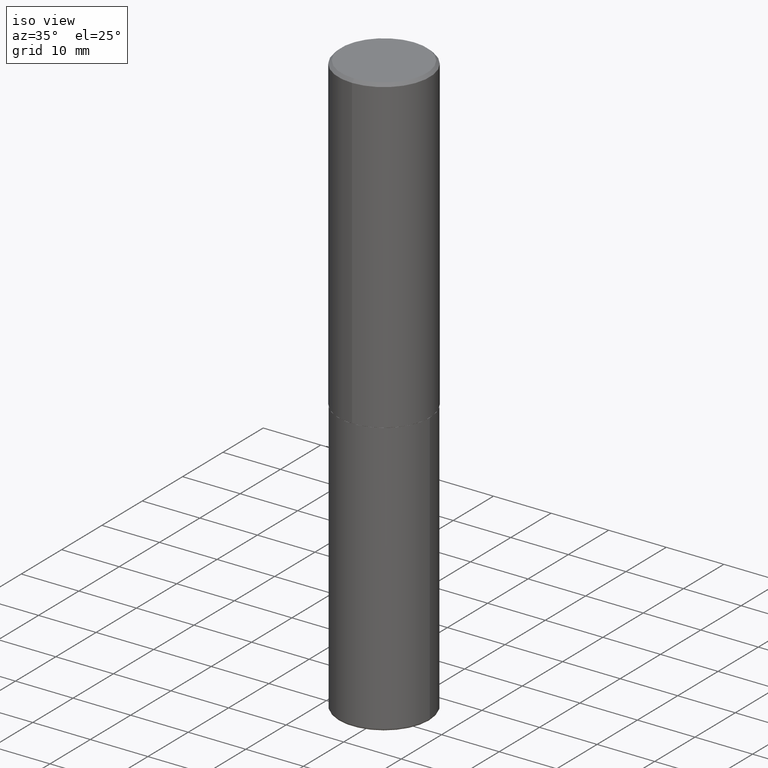
[diagram: clean part render]
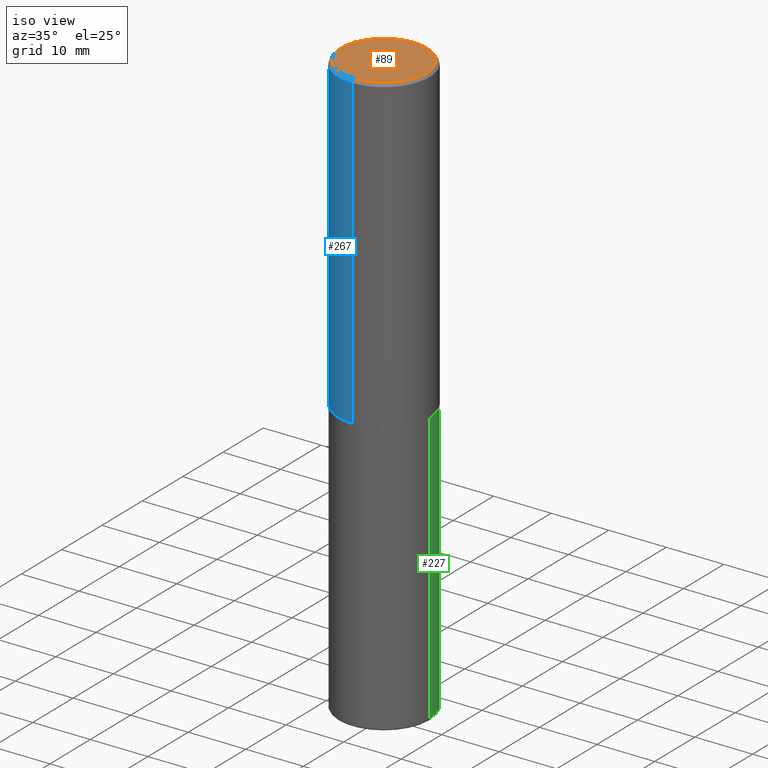
[diagram: same view with three faces highlighted in distinct colors, each labeled with its STEP entity id]
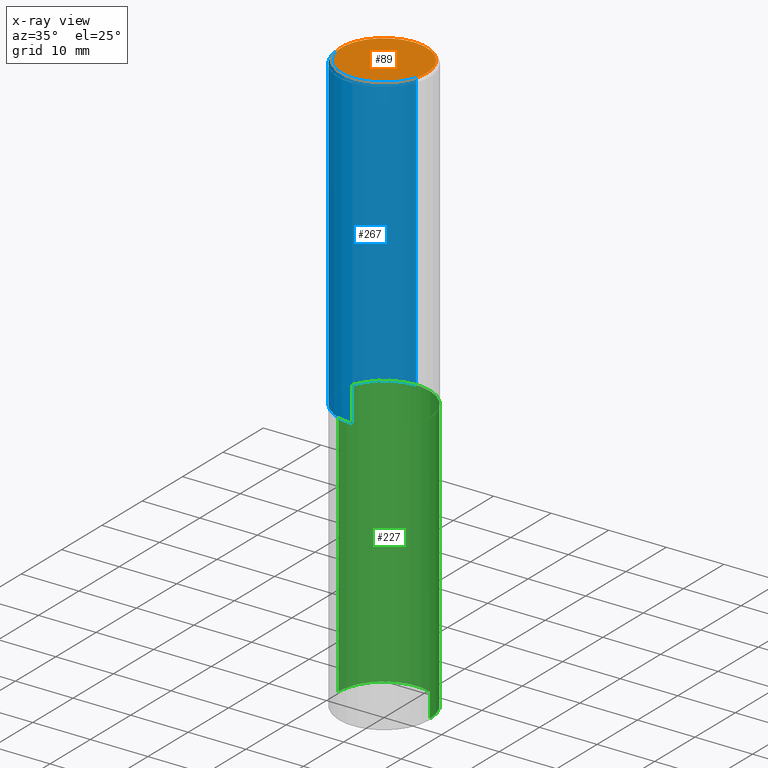
[diagram: x-ray of the same camera — body ghosted, the three highlighted faces saturated]
A machine part, iso view with three faces highlighted in distinct colors.
The next image is the same camera in x-ray (body ghosted, the three faces saturated) — at least one of them is partly hidden behind the body in this view.
Their STEP definitions:

[orange] entity #89 — the highlighted planar face has unit normal (0, -0, -1).
#7 = VERTEX_POINT ( 'NONE', #191 ) ;
#21 = DIRECTION ( 'NONE',  ( -2.444852431726452894E-29, 3.492364022149836358E-15, 1.000000000000000000 ) ) ;
#54 = CARTESIAN_POINT ( 'NONE',  ( -2.075300644325887493E-15, -0.2924999999999999822, 1.030311686326234990E-15 ) ) ;
#73 = AXIS2_PLACEMENT_3D ( 'NONE', #407, #21, #147 ) ;
#89 = ADVANCED_FACE ( 'NONE', ( #187 ), #152, .F. ) ;
#119 = DIRECTION ( 'NONE',  ( -6.982962677686265133E-15, -1.000000000000000000, 3.492364022149836753E-15 ) ) ;
#138 = EDGE_LOOP ( 'NONE', ( #362, #194 ) ) ;
#147 = DIRECTION ( 'NONE',  ( -6.982962677686265133E-15, -1.000000000000000000, 3.492364022149836753E-15 ) ) ;
#152 = PLANE ( 'NONE',  #378 ) ;
#176 = CARTESIAN_POINT ( 'NONE',  ( -2.150299018297948745E-46, 3.071607443834507134E-32, 8.795209847407834549E-18 ) ) ;
#184 = CIRCLE ( 'NONE', #73, 0.2924999999999999822 ) ;
#187 = FACE_OUTER_BOUND ( 'NONE', #138, .T. ) ;
#191 = CARTESIAN_POINT ( 'NONE',  ( 2.112346210000095838E-15, 0.2924999999999999822, -1.012721266631419361E-15 ) ) ;
#194 = ORIENTED_EDGE ( 'NONE', *, *, #230, .T. ) ;
#204 = DIRECTION ( 'NONE',  ( 6.982962677686265922E-15, 1.000000000000000000, -3.492364022149836358E-15 ) ) ;
#230 = EDGE_CURVE ( 'NONE', #261, #7, #184, .T. ) ;
#249 = EDGE_CURVE ( 'NONE', #7, #261, #372, .T. ) ;
#260 = CARTESIAN_POINT ( 'NONE',  ( 2.042516583223232540E-15, 0.2924999999999999822, -1.017118871555123169E-15 ) ) ;
#261 = VERTEX_POINT ( 'NONE', #54 ) ;
#307 = DIRECTION ( 'NONE',  ( -2.444852431726452894E-29, 3.492364022149836358E-15, 1.000000000000000000 ) ) ;
#325 = DIRECTION ( 'NONE',  ( 2.444852431726452333E-29, -3.492364022149836358E-15, -1.000000000000000000 ) ) ;
#343 = AXIS2_PLACEMENT_3D ( 'NONE', #176, #307, #119 ) ;
#362 = ORIENTED_EDGE ( 'NONE', *, *, #249, .T. ) ;
#372 = CIRCLE ( 'NONE', #343, 0.2924999999999999822 ) ;
#378 = AXIS2_PLACEMENT_3D ( 'NONE', #260, #325, #204 ) ;
#407 = CARTESIAN_POINT ( 'NONE',  ( -2.150299018297948745E-46, 3.071607443834507134E-32, 8.795209847407834549E-18 ) ) ;

[blue] entity #267 — the highlighted cylindrical surface (partial cylindrical patch) has radius 7.9375 mm, axis along (-0, 0, 1).
#18 = LINE ( 'NONE', #182, #309 ) ;
#53 = AXIS2_PLACEMENT_3D ( 'NONE', #351, #154, #279 ) ;
#60 = DIRECTION ( 'NONE',  ( -2.444852431726452614E-29, 3.492364022149836358E-15, 1.000000000000000000 ) ) ;
#71 = VERTEX_POINT ( 'NONE', #215 ) ;
#79 = AXIS2_PLACEMENT_3D ( 'NONE', #373, #339, #88 ) ;
#81 = EDGE_CURVE ( 'NONE', #395, #123, #385, .T. ) ;
#88 = DIRECTION ( 'NONE',  ( -6.982962677686265922E-15, -1.000000000000000000, 3.496765431890253764E-15 ) ) ;
#100 = CARTESIAN_POINT ( 'NONE',  ( 2.220446049250313475E-15, 0.3125000000000001665, -1.091363756921824478E-15 ) ) ;
#120 = VECTOR ( 'NONE', #60, 39.37007874015748143 ) ;
#123 = VERTEX_POINT ( 'NONE', #295 ) ;
#134 = ORIENTED_EDGE ( 'NONE', *, *, #81, .F. ) ;
#135 = ORIENTED_EDGE ( 'NONE', *, *, #416, .F. ) ;
#149 = DIRECTION ( 'NONE',  ( -6.982962677686265133E-15, -1.000000000000000000, 3.492364022149836358E-15 ) ) ;
#154 = DIRECTION ( 'NONE',  ( -2.444852431726452894E-29, 3.492364022149836358E-15, 1.000000000000000000 ) ) ;
#174 = DIRECTION ( 'NONE',  ( -2.444852431726452894E-29, 3.492364022149836358E-15, 1.000000000000000000 ) ) ;
#182 = CARTESIAN_POINT ( 'NONE',  ( -2.182175836776959136E-15, -0.3125000000000001665, 1.091363756921824478E-15 ) ) ;
#196 = EDGE_LOOP ( 'NONE', ( #134, #233, #326, #135 ) ) ;
#208 = CARTESIAN_POINT ( 'NONE',  ( 0.000000000000000000, 0.000000000000000000, 0.000000000000000000 ) ) ;
#215 = CARTESIAN_POINT ( 'NONE',  ( -2.182175836776908254E-15, -0.3125000000000077161, -2.123999999999998334 ) ) ;
#220 = CARTESIAN_POINT ( 'NONE',  ( 2.220446049250340297E-15, 0.3124999999999928391, -2.124000000000000554 ) ) ;
#221 = VERTEX_POINT ( 'NONE', #332 ) ;
#225 = CIRCLE ( 'NONE', #53, 0.3125000000000000000 ) ;
#233 = ORIENTED_EDGE ( 'NONE', *, *, #257, .T. ) ;
#244 = CYLINDRICAL_SURFACE ( 'NONE', #358, 0.3125000000000001665 ) ;
#257 = EDGE_CURVE ( 'NONE', #395, #71, #305, .T. ) ;
#267 = ADVANCED_FACE ( 'NONE', ( #271 ), #244, .T. ) ;
#271 = FACE_OUTER_BOUND ( 'NONE', #196, .T. ) ;
#273 = EDGE_CURVE ( 'NONE', #71, #221, #18, .T. ) ;
#279 = DIRECTION ( 'NONE',  ( -6.982962677686265133E-15, -1.000000000000000000, 3.496765431890256920E-15 ) ) ;
#295 = CARTESIAN_POINT ( 'NONE',  ( 2.182175836776958741E-15, 0.3124999999999999445, -0.02000000000000116268 ) ) ;
#305 = CIRCLE ( 'NONE', #79, 0.3125000000000002776 ) ;
#308 = DIRECTION ( 'NONE',  ( -2.444852431726452614E-29, 3.492364022149836358E-15, 1.000000000000000000 ) ) ;
#309 = VECTOR ( 'NONE', #308, 39.37007874015748143 ) ;
#326 = ORIENTED_EDGE ( 'NONE', *, *, #273, .T. ) ;
#332 = CARTESIAN_POINT ( 'NONE',  ( -2.143905624303602824E-15, -0.3125000000000000555, -0.01999999999999897693 ) ) ;
#339 = DIRECTION ( 'NONE',  ( -2.444852431726452894E-29, 3.492364022149836358E-15, 1.000000000000000000 ) ) ;
#351 = CARTESIAN_POINT ( 'NONE',  ( 4.889704863452922148E-31, -6.984728044299695791E-17, -0.02000000000000006981 ) ) ;
#358 = AXIS2_PLACEMENT_3D ( 'NONE', #208, #174, #149 ) ;
#373 = CARTESIAN_POINT ( 'NONE',  ( 5.192866564986985411E-29, -7.417781183046251262E-15, -2.123999999999999666 ) ) ;
#385 = LINE ( 'NONE', #100, #120 ) ;
#395 = VERTEX_POINT ( 'NONE', #220 ) ;
#416 = EDGE_CURVE ( 'NONE', #123, #221, #225, .T. ) ;

[green] entity #227 — the highlighted cylindrical surface (partial cylindrical patch) has radius 7.9375 mm, axis along (-0, 0, 1).
#23 = CARTESIAN_POINT ( 'NONE',  ( -0.3125000000000000000, -8.446029440915494976E-15, -2.124999999999999556 ) ) ;
#24 = DIRECTION ( 'NONE',  ( 1.000000000000000000, -6.982962677686265133E-15, 0.000000000000000000 ) ) ;
#26 = DIRECTION ( 'NONE',  ( -2.445468806185136597E-29, 3.491481338843145583E-15, 1.000000000000000000 ) ) ;
#40 = ORIENTED_EDGE ( 'NONE', *, *, #330, .F. ) ;
#42 = ORIENTED_EDGE ( 'NONE', *, *, #103, .T. ) ;
#58 = EDGE_CURVE ( 'NONE', #359, #189, #371, .T. ) ;
#99 = AXIS2_PLACEMENT_3D ( 'NONE', #274, #408, #366 ) ;
#103 = EDGE_CURVE ( 'NONE', #189, #297, #299, .T. ) ;
#115 = AXIS2_PLACEMENT_3D ( 'NONE', #159, #375, #24 ) ;
#121 = CYLINDRICAL_SURFACE ( 'NONE', #99, 0.3125000000000000000 ) ;
#141 = DIRECTION ( 'NONE',  ( -2.445468806185136877E-29, 3.491481338843145188E-15, 1.000000000000000000 ) ) ;
#158 = CARTESIAN_POINT ( 'NONE',  ( 9.745193192647769069E-29, -1.391355313528993407E-14, -3.984999999999999876 ) ) ;
#159 = CARTESIAN_POINT ( 'NONE',  ( 5.196621213143414147E-29, -7.419397845041682046E-15, -2.124999999999999556 ) ) ;
#164 = EDGE_LOOP ( 'NONE', ( #331, #42, #40, #226 ) ) ;
#169 = CARTESIAN_POINT ( 'NONE',  ( -0.3125000000000000000, 2.220446049250313081E-15, -1.537167215704658232E-29 ) ) ;
#189 = VERTEX_POINT ( 'NONE', #368 ) ;
#198 = VECTOR ( 'NONE', #141, 39.37007874015748143 ) ;
#216 = AXIS2_PLACEMENT_3D ( 'NONE', #158, #26, #284 ) ;
#218 = CARTESIAN_POINT ( 'NONE',  ( 0.3125000000000000000, -9.601573681818640393E-15, -2.124999999999999556 ) ) ;
#226 = ORIENTED_EDGE ( 'NONE', *, *, #314, .F. ) ;
#227 = ADVANCED_FACE ( 'NONE', ( #405 ), #121, .T. ) ;
#269 = LINE ( 'NONE', #401, #365 ) ;
#274 = CARTESIAN_POINT ( 'NONE',  ( 0.000000000000000000, 0.000000000000000000, 0.000000000000000000 ) ) ;
#284 = DIRECTION ( 'NONE',  ( 1.000000000000000000, -6.982962677686269077E-15, 0.000000000000000000 ) ) ;
#297 = VERTEX_POINT ( 'NONE', #23 ) ;
#299 = LINE ( 'NONE', #169, #198 ) ;
#314 = EDGE_CURVE ( 'NONE', #359, #409, #269, .T. ) ;
#316 = CIRCLE ( 'NONE', #115, 0.3125000000000000000 ) ;
#330 = EDGE_CURVE ( 'NONE', #409, #297, #316, .T. ) ;
#331 = ORIENTED_EDGE ( 'NONE', *, *, #58, .T. ) ;
#334 = DIRECTION ( 'NONE',  ( -2.445468806185136877E-29, 3.491481338843145188E-15, 1.000000000000000000 ) ) ;
#359 = VERTEX_POINT ( 'NONE', #382 ) ;
#365 = VECTOR ( 'NONE', #334, 39.37007874015748143 ) ;
#366 = DIRECTION ( 'NONE',  ( 1.000000000000000000, -6.982962677686266711E-15, 4.876176775795936353E-29 ) ) ;
#368 = CARTESIAN_POINT ( 'NONE',  ( -0.3125000000000000555, -1.169310708603962099E-14, -3.984999999999999876 ) ) ;
#371 = CIRCLE ( 'NONE', #216, 0.3125000000000000000 ) ;
#375 = DIRECTION ( 'NONE',  ( -2.445468806185136597E-29, 3.491481338843145583E-15, 1.000000000000000000 ) ) ;
#382 = CARTESIAN_POINT ( 'NONE',  ( 0.3125000000000000555, -1.609572897206689399E-14, -3.984999999999999876 ) ) ;
#401 = CARTESIAN_POINT ( 'NONE',  ( 0.3125000000000000000, -2.182175836776958347E-15, 1.523805242436230075E-29 ) ) ;
#405 = FACE_OUTER_BOUND ( 'NONE', #164, .T. ) ;
#408 = DIRECTION ( 'NONE',  ( -2.445468806185136597E-29, 3.491481338843145583E-15, 1.000000000000000000 ) ) ;
#409 = VERTEX_POINT ( 'NONE', #218 ) ;